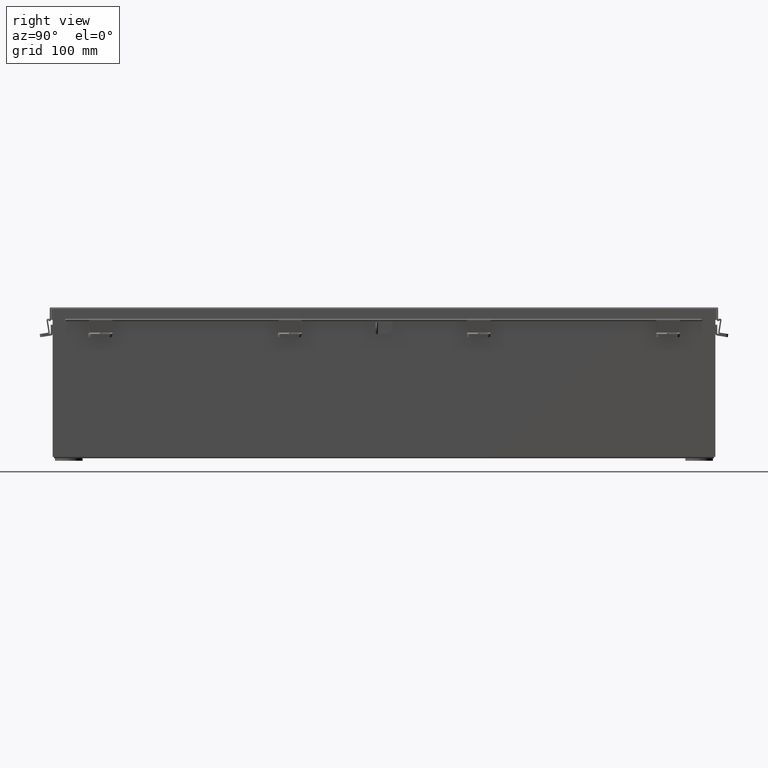
[diagram: clean part render]
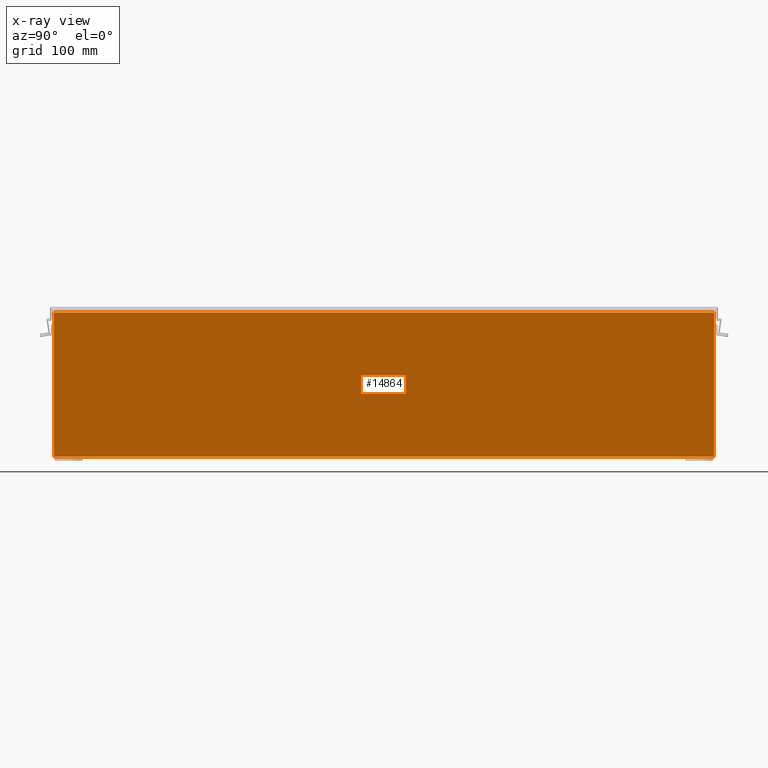
[diagram: x-ray — body ghosted, one internal face saturated and labeled with its STEP entity id]
A machine part, right view, then the same camera in x-ray: the body is ghosted and one INTERNAL B-rep face — a face not visible from any outside direction — is saturated and labeled: STEP entity #14864.
In plain terms, the highlighted planar face has unit normal (-1, 0, 0).
Its self-contained STEP definition (entity closure, byte-faithful):
#156 = LINE ( 'NONE', #12365, #17747 ) ;
#374 = EDGE_CURVE ( 'NONE', #7214, #10829, #25563, .T. ) ;
#1396 = EDGE_LOOP ( 'NONE', ( #14577, #28707, #1564, #3606 ) ) ;
#1564 = ORIENTED_EDGE ( 'NONE', *, *, #18468, .F. ) ;
#2756 = VERTEX_POINT ( 'NONE', #15164 ) ;
#3052 = VERTEX_POINT ( 'NONE', #17391 ) ;
#3606 = ORIENTED_EDGE ( 'NONE', *, *, #17388, .F. ) ;
#5103 = VECTOR ( 'NONE', #22927, 39.37007874015748100 ) ;
#6358 = DIRECTION ( 'NONE',  ( -3.479795166820706300E-015, -0.0000000000000000000, -1.000000000000000000 ) ) ;
#7214 = VERTEX_POINT ( 'NONE', #22800 ) ;
#7283 = CARTESIAN_POINT ( 'NONE',  ( 3.925300000000029300, 17.92529999999999300, 7.850599999999999100 ) ) ;
#8457 = EDGE_CURVE ( 'NONE', #3052, #7214, #24122, .T. ) ;
#8791 = DIRECTION ( 'NONE',  ( -1.000000000000000000, 0.0000000000000000000, 3.479795166820705900E-015 ) ) ;
#10829 = VERTEX_POINT ( 'NONE', #25266 ) ;
#12365 = CARTESIAN_POINT ( 'NONE',  ( 3.925300000000001800, -17.92530000000001100, 0.01300000000000011600 ) ) ;
#13309 = PLANE ( 'NONE',  #28862 ) ;
#14079 = VECTOR ( 'NONE', #25676, 39.37007874015748100 ) ;
#14577 = ORIENTED_EDGE ( 'NONE', *, *, #374, .F. ) ;
#14664 = DIRECTION ( 'NONE',  ( 5.303270486319196900E-032, 1.000000000000000000, 1.524018004532289100E-017 ) ) ;
#14864 = ADVANCED_FACE ( 'NONE', ( #16490 ), #13309, .T. ) ;
#15164 = CARTESIAN_POINT ( 'NONE',  ( 3.925300000000001800, 17.92529999999999300, 0.01300000000000039000 ) ) ;
#16490 = FACE_OUTER_BOUND ( 'NONE', #1396, .T. ) ;
#17388 = EDGE_CURVE ( 'NONE', #10829, #2756, #156, .T. ) ;
#17391 = CARTESIAN_POINT ( 'NONE',  ( 3.925300000000029300, 17.92529999999999300, 7.837599999999999200 ) ) ;
#17747 = VECTOR ( 'NONE', #14664, 39.37007874015748100 ) ;
#18468 = EDGE_CURVE ( 'NONE', #2756, #3052, #21636, .T. ) ;
#19453 = VECTOR ( 'NONE', #6358, 39.37007874015748100 ) ;
#19899 = CARTESIAN_POINT ( 'NONE',  ( 3.925300000000001800, -17.92530000000001100, 0.0000000000000000000 ) ) ;
#20612 = CARTESIAN_POINT ( 'NONE',  ( 3.925300000000028900, 17.92529999999999300, 7.837599999999999200 ) ) ;
#21636 = LINE ( 'NONE', #7283, #14079 ) ;
#22551 = CARTESIAN_POINT ( 'NONE',  ( 3.925300000000001800, 0.0000000000000000000, -1.391535071772734100E-014 ) ) ;
#22800 = CARTESIAN_POINT ( 'NONE',  ( 3.925300000000028900, -17.92530000000001100, 7.837599999999999200 ) ) ;
#22927 = DIRECTION ( 'NONE',  ( -0.0000000000000000000, -1.000000000000000000, -0.0000000000000000000 ) ) ;
#24122 = LINE ( 'NONE', #20612, #5103 ) ;
#24870 = DIRECTION ( 'NONE',  ( 3.479795166820705900E-015, 0.0000000000000000000, 1.000000000000000000 ) ) ;
#25266 = CARTESIAN_POINT ( 'NONE',  ( 3.925300000000001800, -17.92530000000001100, 0.01300000000000039000 ) ) ;
#25563 = LINE ( 'NONE', #19899, #19453 ) ;
#25676 = DIRECTION ( 'NONE',  ( 3.479795166820706300E-015, -0.0000000000000000000, 1.000000000000000000 ) ) ;
#28707 = ORIENTED_EDGE ( 'NONE', *, *, #8457, .F. ) ;
#28862 = AXIS2_PLACEMENT_3D ( 'NONE', #22551, #8791, #24870 ) ;